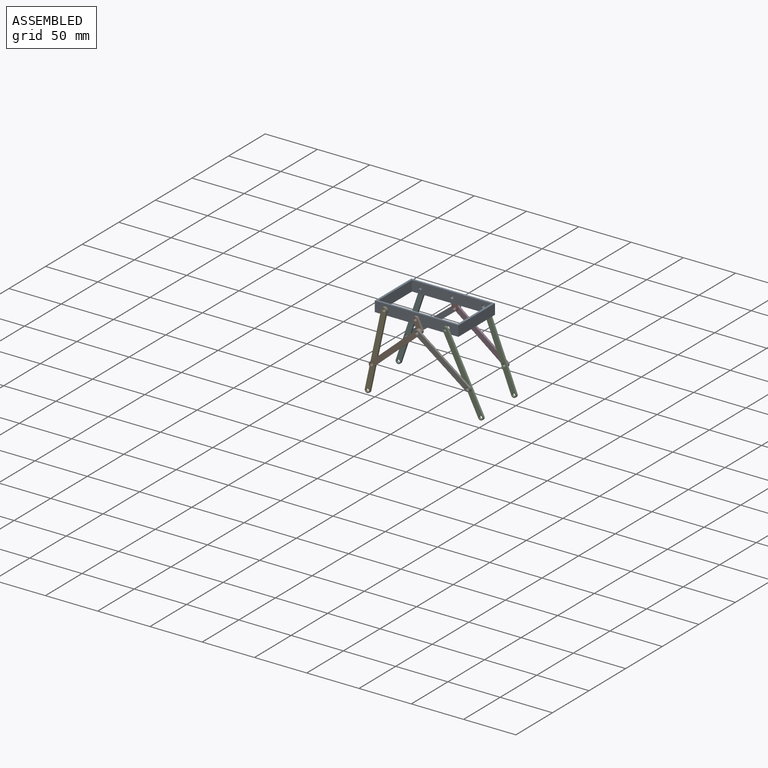
[diagram: assembled view]
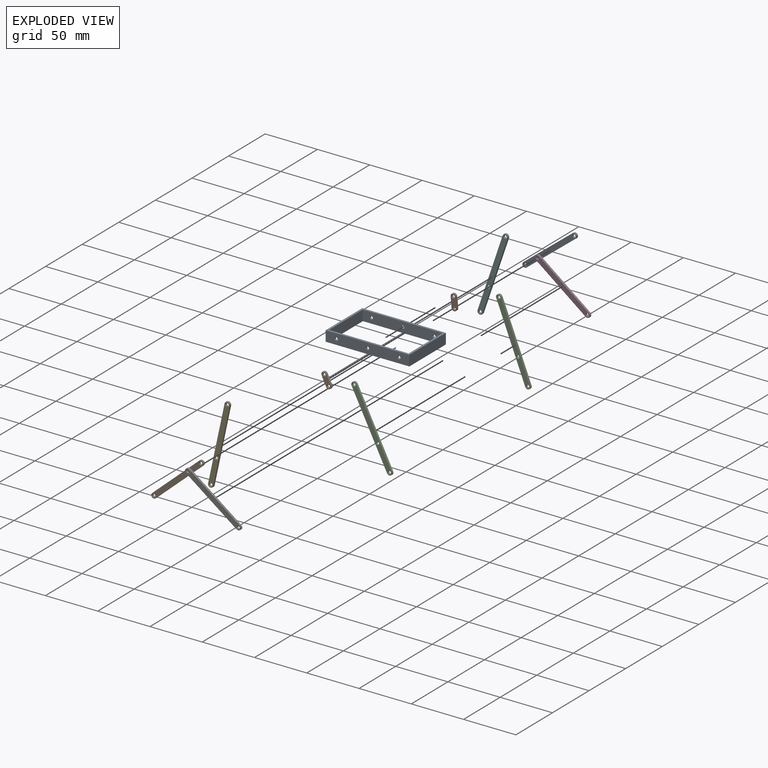
[diagram: exploded view]
GUIDED TOUR — MATED ASSEMBLY (Onshape document 7dee3af7dce9aced0ba5b8dd, AutoMate assembly 7dee3af7dce9aced0ba5b8dd_7815ff88cf026cb08cca351e_86197c67877f222337ba6f6c_default)

This assembly has 11 components, labeled P0..P10 below (a component is one placed occurrence of a part; the same part can appear more than once), held together by 16 mates. A mate is a constraint between two components; its type names the relative motion it leaves free:
  CYLINDRICAL — leaves both rotation about and translation along the listed axis free,
  PLANAR — leaves sliding in the plane through the listed point (normal = the listed direction) and rotation about that normal free,
  REVOLUTE — leaves rotation about the listed axis free (a hinge).
Axis/direction vectors are unit vectors and 'through' points are millimeter coordinates, both in the assembly's world frame.

MATES
  1. PLANAR "平面 7": P7 <-> P0, direction (0.000, -1.000, 0.000) through (40.44, 50.00, 0.02) mm
  2. REVOLUTE "轉動 4": P4 <-> P0, axis (0.000, 1.000, 0.000) through (10.00, 0.00, 5.00) mm
  3. PLANAR "平面 8": P9 <-> P0, direction (0.000, 1.000, 0.000) through (42.16, 0.00, 0.49) mm
  4. REVOLUTE "轉動 19": P5 <-> P8, axis (0.000, 1.000, 0.000) through (-6.03, 54.00, -42.36) mm
  5. REVOLUTE "轉動 17": P3 <-> P7, axis (0.000, -1.000, 0.000) through (40.89, 52.00, -4.96) mm
  6. REVOLUTE "轉動 1": P0 <-> P7, axis (0.000, 1.000, 0.000) through (40.00, 50.00, 5.00) mm
  7. CYLINDRICAL "圓柱 1": P6 <-> P1, axis (0.000, 1.000, 0.000) through (44.32, -4.00, -4.02) mm
  8. REVOLUTE "轉動 10": P1 <-> P4, axis (0.000, 1.000, 0.000) through (-0.52, -2.00, -43.88) mm
  9. REVOLUTE "轉動 9": P6 <-> P10, axis (0.000, 1.000, 0.000) through (92.65, -4.00, -39.57) mm
  10. REVOLUTE "轉動 20": P3 <-> P2, axis (0.000, -1.000, 0.000) through (88.52, 52.00, -41.44) mm
  11. REVOLUTE "轉動 5": P0 <-> P2, axis (0.000, 1.000, 0.000) through (70.00, 50.00, 5.00) mm
  12. REVOLUTE "轉動 7": P1 <-> P9, axis (0.000, 1.000, 0.000) through (44.32, -2.00, -4.02) mm
  13. REVOLUTE "轉動 3": P0 <-> P9, axis (0.000, -1.000, 0.000) through (40.00, 0.00, 5.00) mm
  14. REVOLUTE "轉動 6": P0 <-> P5, axis (0.000, 1.000, 0.000) through (10.00, 50.00, 5.00) mm
  15. CYLINDRICAL "圓柱 2": P8 <-> P3, axis (0.000, -1.000, 0.000) through (40.89, 54.00, -4.96) mm
  16. REVOLUTE "轉動 2": P0 <-> P10, axis (0.000, -1.000, 0.000) through (70.00, 0.00, 5.00) mm

ASSEMBLY ORDER
  1. P7 — the base component [order verified]
  2. P2 [order verified]
  3. P3 [order verified]
  4. P5 [order verified]
  5. P0 [order verified]
  6. P9 [order verified]
  7. P8 [order verified]
  8. P10 [order verified]
  9. P4 [order verified]
  10. P1 [order verified]
  11. P6 [order verified]
Order-tag legend:
  [order verified] — this step's position reverses a verified removal order: the component was checked to insert without passing through the ones already placed.

Of the 11 components, 11 carry the full construction recipe — the FeatureScript program that regenerates the part's solid from scratch; the rest are supplied as boundary geometry only.
Each toured component is shown spotlighted twice — in the assembled view, then in the exploded view, where a leader line traces a displaced component back to its assembled socket (saturated green if recipe-attached, orange if geometry-only; every other component desaturated gray) — followed by its recipe or geometry summary and the mates that hold it.
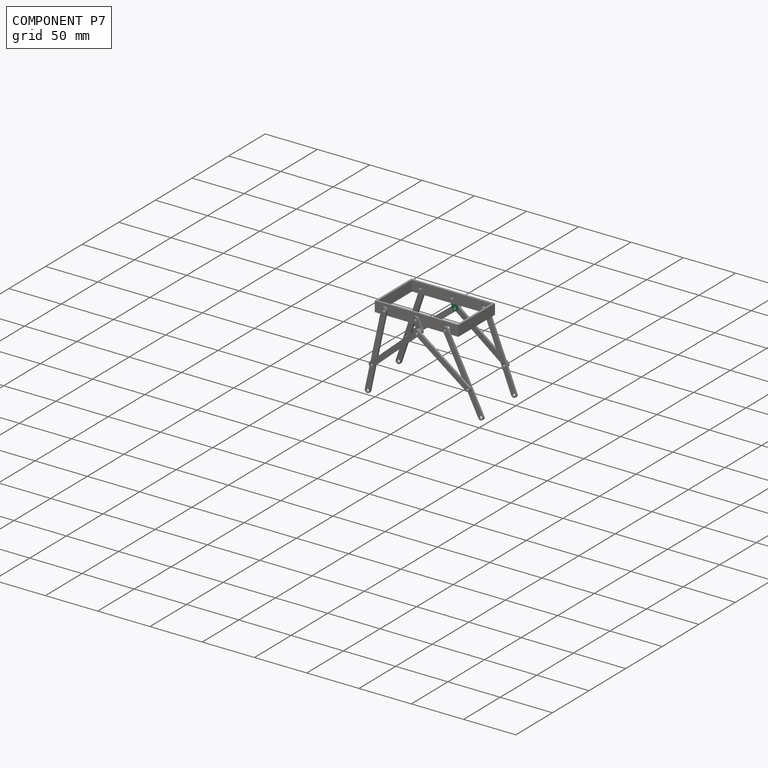
[diagram: component P7 — assembled]
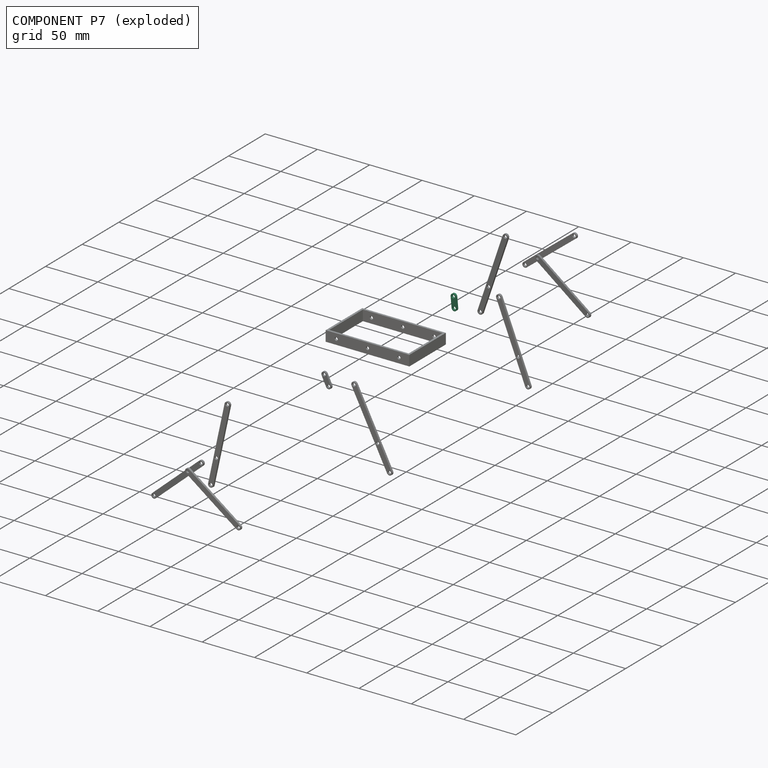
[diagram: component P7 — exploded]
COMPONENT P7 — recipe-attached (CADFS 00731948, mesh-verified: the recipe's output STEP matches this component's geometry to below the mesh-comparison resolution (tessellation chordal tolerance ~0.0239 mm)).
Held by: PLANAR mate "平面 7" to P0; REVOLUTE mate "轉動 17" to P3; REVOLUTE mate "轉動 1" to P0.
Construction recipe (FeatureScript — the CAD program that rebuilds this solid; sketch coordinates are in the units given by the * unit suffixes, e.g. mm):

FeatureScript 1511;
import(path : "onshape/std/geometry.fs", version : "1511.0");
import(path : "onshape/std/common.fs", version : "1511.0");
const mm = millimeter;
const VERTEX = EntityType.VERTEX;
const EDGE = EntityType.EDGE;
const FACE = EntityType.FACE;
const BODY = EntityType.BODY;
function v(x, y){return vector(x, y);}
function OD(order){return orderDisambiguation(order);}
function OSD(set){return originalSetDisambiguation(set);}
function TD(topology){return topologyDisambiguation(topology);}
function TDD(query){return trueDependencyDisambiguation(query);}
function sQuery(a, b, c) {return sketchEntityQuery(a, b, c);}

annotation { "Feature Type Name" : "Feature", "Feature Type Description" : "" }
export const myFeature = defineFeature(function(context is Context, id is Id, definition is map)
    precondition{}
    {
        {
            var Q0;
            Q0=qCreatedBy(makeId("Front.planeOp"),FACE);
            var sketch = newSketch(context, id + "F0", { "sketchPlane" : qUnion([Q0])});
            skCircle(sketch, "E0", {"center": v(0, 0) * mm, "radius": 1.5 * mm});
            skLineSegment(sketch, "E1", {"start": v(0, 0) * mm, "end": v(10, 0) * mm, "construction": true});
            skCircle(sketch, "E2", {"center": v(10, 0) * mm, "radius": 1.5 * mm});
            skArc(sketch, "E3", {"start": v(0, 2.5) * mm, "mid": v(-2.5, 0) * mm, "end": v(0, -2.5) * mm});
            skArc(sketch, "E4", {"start": v(10, -2.5) * mm, "mid": v(12.5, 0) * mm, "end": v(10, 2.5) * mm});
            skLineSegment(sketch, "E5", {"start": v(0, 2.5) * mm, "end": v(10, 2.5) * mm});
            skLineSegment(sketch, "E6.MirrorCS", {"start": v(0, -2.5) * mm, "end": v(10, -2.5) * mm});
            skSolve(sketch);
        }
        {
            var Q0;
            Q0 = qSketchRegion(id + "F0", true);
            extrude(context, id + "F1", {"entities" : qUnion([Q0]), "depth" : 2 * mm, "offsetDistance" : 25.4 * mm});
        }
    });
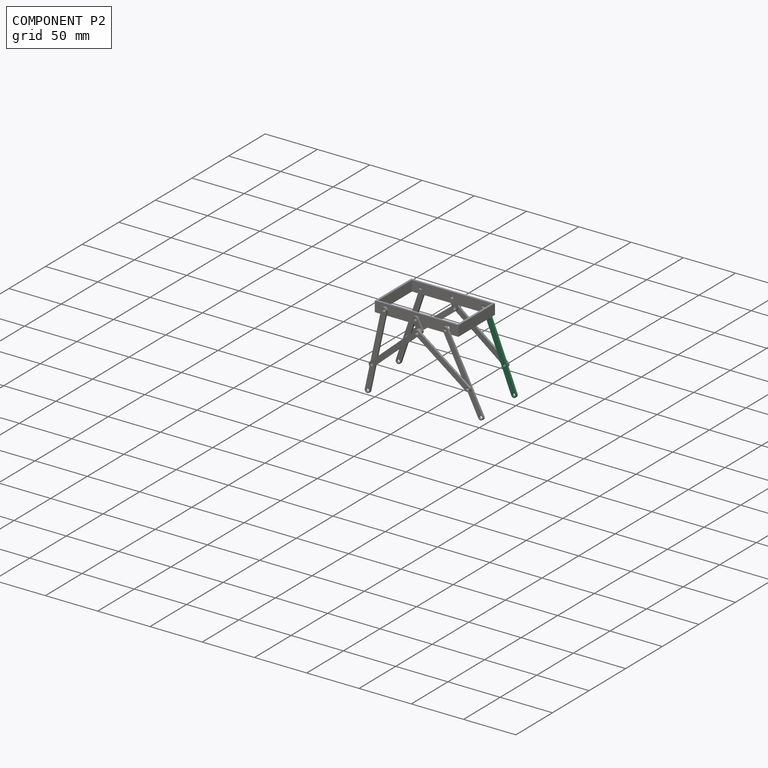
[diagram: component P2 — assembled]
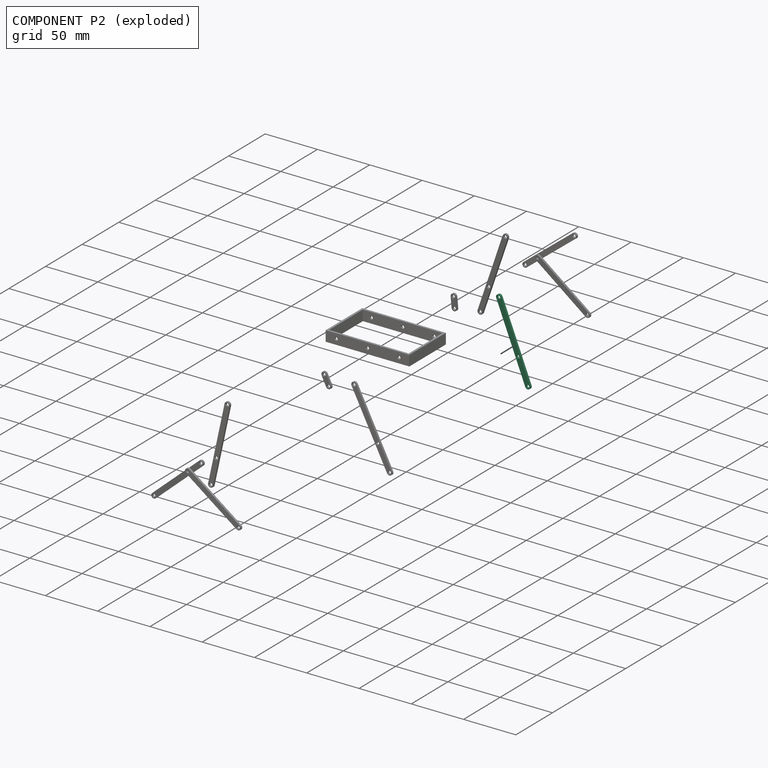
[diagram: component P2 — exploded]
COMPONENT P2 — recipe-attached (CADFS 00731947, mesh-verified: the recipe's output STEP matches this component's geometry to below the mesh-comparison resolution (tessellation chordal tolerance ~0.12 mm)).
Held by: REVOLUTE mate "轉動 20" to P3; REVOLUTE mate "轉動 5" to P0.
Construction recipe (FeatureScript — the CAD program that rebuilds this solid; sketch coordinates are in the units given by the * unit suffixes, e.g. mm):

FeatureScript 1511;
import(path : "onshape/std/geometry.fs", version : "1511.0");
import(path : "onshape/std/common.fs", version : "1511.0");
const mm = millimeter;
const VERTEX = EntityType.VERTEX;
const EDGE = EntityType.EDGE;
const FACE = EntityType.FACE;
const BODY = EntityType.BODY;
function v(x, y){return vector(x, y);}
function OD(order){return orderDisambiguation(order);}
function OSD(set){return originalSetDisambiguation(set);}
function TD(topology){return topologyDisambiguation(topology);}
function TDD(query){return trueDependencyDisambiguation(query);}
function sQuery(a, b, c) {return sketchEntityQuery(a, b, c);}

annotation { "Feature Type Name" : "Feature", "Feature Type Description" : "" }
export const myFeature = defineFeature(function(context is Context, id is Id, definition is map)
    precondition{}
    {
        {
            var Q0;
            Q0=qCreatedBy(makeId("Front.planeOp"),FACE);
            var sketch = newSketch(context, id + "F0", { "sketchPlane" : qUnion([Q0])});
            skCircle(sketch, "E0", {"center": v(0, 37.5) * mm, "radius": 1.5 * mm});
            skCircle(sketch, "E1", {"center": v(0, -37.5) * mm, "radius": 1.5 * mm});
            skArc(sketch, "E2", {"start": v(2.5, 37.5) * mm, "mid": v(0, 40) * mm, "end": v(-2.5, 37.5) * mm});
            skArc(sketch, "E3", {"start": v(-2.5, -37.5) * mm, "mid": v(0, -40) * mm, "end": v(2.5, -37.5) * mm});
            skLineSegment(sketch, "E4", {"start": v(2.5, 37.5) * mm, "end": v(2.5, -37.5) * mm});
            skLineSegment(sketch, "E5", {"start": v(-2.5, 37.5) * mm, "end": v(-2.5, -37.5) * mm});
            skCircle(sketch, "E6", {"center": v(0, 12.5) * mm, "radius": 1.5 * mm});
            skSolve(sketch);
        }
        {
            var Q0;
            Q0 = qSketchRegion(id + "F0", true);
            extrude(context, id + "F1", {"entities" : qUnion([Q0]), "depth" : 2 * mm, "offsetDistance" : 25 * mm});
        }
    });
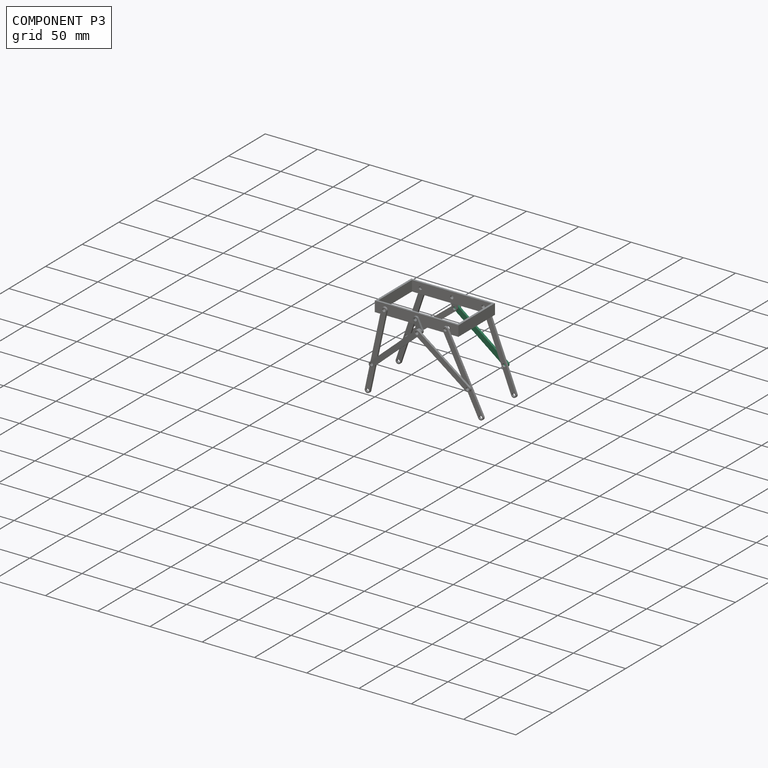
[diagram: component P3 — assembled]
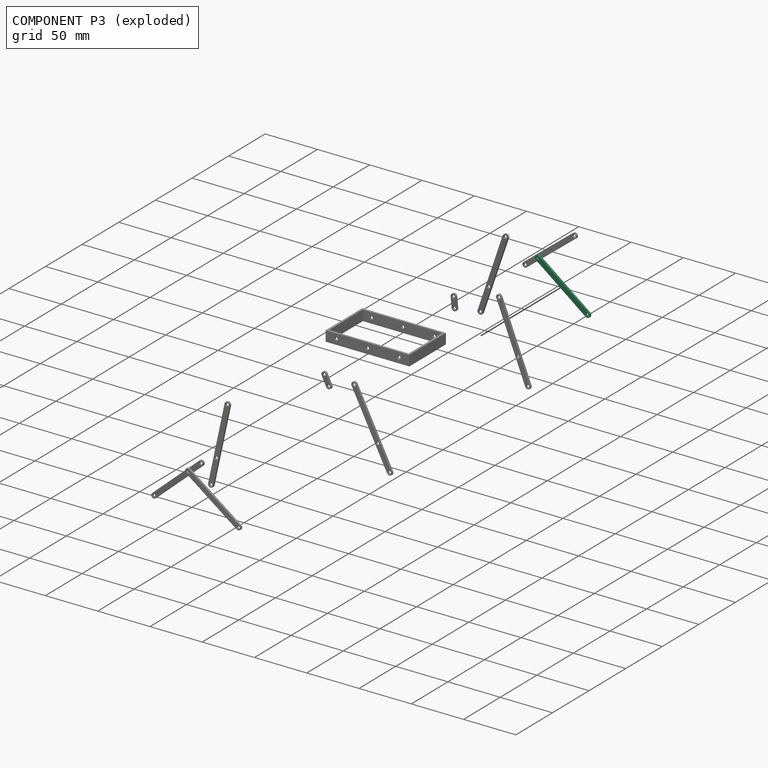
[diagram: component P3 — exploded]
COMPONENT P3 — same part as P1 (CADFS 00728989); its construction recipe is shown at P1.
Held by: REVOLUTE mate "轉動 17" to P7; REVOLUTE mate "轉動 20" to P2; CYLINDRICAL mate "圓柱 2" to P8.
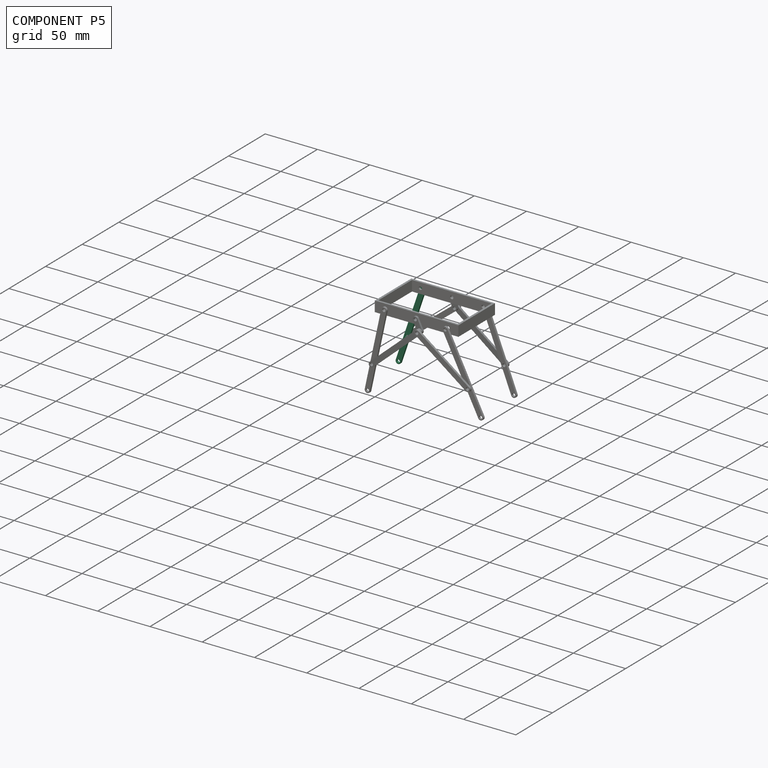
[diagram: component P5 — assembled]
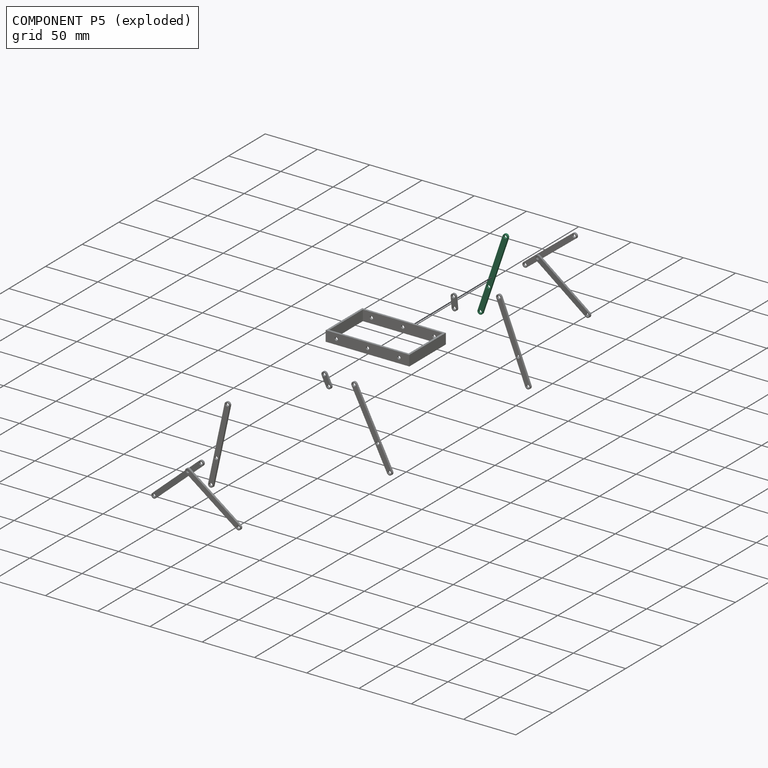
[diagram: component P5 — exploded]
COMPONENT P5 — same part as P2 (CADFS 00731947); its construction recipe is shown at P2.
Held by: REVOLUTE mate "轉動 19" to P8; REVOLUTE mate "轉動 6" to P0.
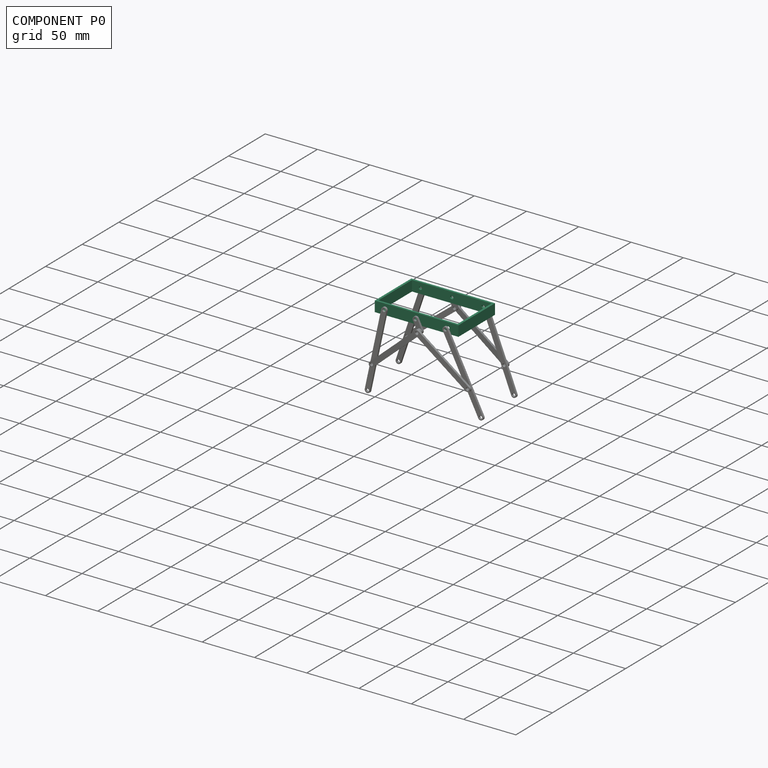
[diagram: component P0 — assembled]
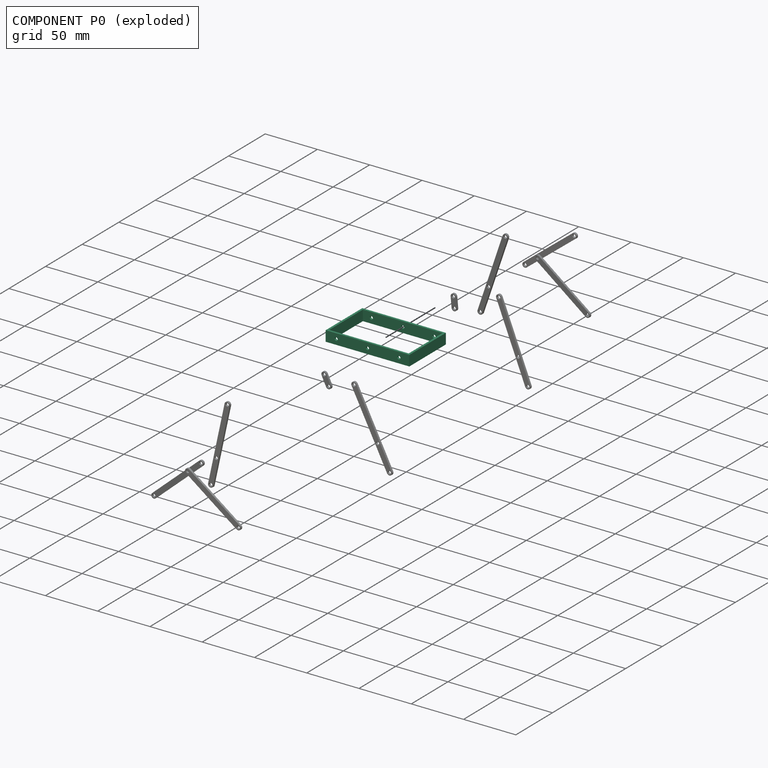
[diagram: component P0 — exploded]
COMPONENT P0 — recipe-attached (CADFS 00729754, mesh-verified: the recipe's output STEP matches this component's geometry to below the mesh-comparison resolution (tessellation chordal tolerance ~0.142 mm)).
Held by: PLANAR mate "平面 7" to P7; REVOLUTE mate "轉動 4" to P4; PLANAR mate "平面 8" to P9; REVOLUTE mate "轉動 1" to P7; REVOLUTE mate "轉動 5" to P2; REVOLUTE mate "轉動 3" to P9; REVOLUTE mate "轉動 6" to P5; REVOLUTE mate "轉動 2" to P10.
Construction recipe (FeatureScript — the CAD program that rebuilds this solid; sketch coordinates are in the units given by the * unit suffixes, e.g. mm):

FeatureScript 1511;
import(path : "onshape/std/geometry.fs", version : "1511.0");
import(path : "onshape/std/common.fs", version : "1511.0");
const mm = millimeter;
const VERTEX = EntityType.VERTEX;
const EDGE = EntityType.EDGE;
const FACE = EntityType.FACE;
const BODY = EntityType.BODY;
function v(x, y){return vector(x, y);}
function OD(order){return orderDisambiguation(order);}
function OSD(set){return originalSetDisambiguation(set);}
function TD(topology){return topologyDisambiguation(topology);}
function TDD(query){return trueDependencyDisambiguation(query);}
function sQuery(a, b, c) {return sketchEntityQuery(a, b, c);}

annotation { "Feature Type Name" : "Feature", "Feature Type Description" : "" }
export const myFeature = defineFeature(function(context is Context, id is Id, definition is map)
    precondition{}
    {
        {
            var Q0;
            Q0=qCreatedBy(makeId("Top.planeOp"),FACE);
            var sketch = newSketch(context, id + "F0", { "sketchPlane" : qUnion([Q0])});
            skLineSegment(sketch, "E0.bottom", {"start": v(40, -25) * mm, "end": v(-40, -25) * mm});
            skLineSegment(sketch, "E0.top", {"start": v(40, 25) * mm, "end": v(-40, 25) * mm});
            skLineSegment(sketch, "E0.left", {"start": v(40, -25) * mm, "end": v(40, 25) * mm});
            skLineSegment(sketch, "E0.right", {"start": v(-40, -25) * mm, "end": v(-40, 25) * mm});
            skPoint(sketch, "E0.middle", {"position": v(0, 0) * mm});
            skSolve(sketch);
        }
        {
            var Q0;
            Q0=makeQuery(id+"F0.imprint","IMPRINT",FACE,{"disambiguationData":[TD([[makeQuery(id+"F0.imprint","IMPRINT",EDGE,{"derivedFrom":sQuery(id+"F0.wireOp",EDGE,"E0.bottom")}),-1.0]])]});
            extrude(context, id + "F1", {"entities" : qUnion([Q0]), "depth" : 10 * mm, "offsetDistance" : 25 * mm});
        }
        {
            var Q0;
            Q0=makeQuery(id+"F1.opExtrude","CAP_FACE",FACE,{"disambiguationData":[OSD([sQuery(id+"F0.wireOp",EDGE,"E0.bottom"),sQuery(id+"F0.wireOp",EDGE,"E0.top"),sQuery(id+"F0.wireOp",EDGE,"E0.left"),sQuery(id+"F0.wireOp",EDGE,"E0.right")])],"isStart":false});
            var Q1;
            Q1=makeQuery(id+"F1.opExtrude","CAP_FACE",FACE,{"disambiguationData":[OSD([sQuery(id+"F0.wireOp",EDGE,"E0.bottom"),sQuery(id+"F0.wireOp",EDGE,"E0.top"),sQuery(id+"F0.wireOp",EDGE,"E0.left"),sQuery(id+"F0.wireOp",EDGE,"E0.right")])],"isStart":true});
            shell(context, id + "F2", {"entities" : qUnion([Q0, Q1]), "thickness" : 2 * mm});
        }
        {
            var Q0;
            Q0=qCreatedBy(makeId("Front.planeOp"),FACE);
            var sketch = newSketch(context, id + "F3", { "sketchPlane" : qUnion([Q0])});
            skCircle(sketch, "E1", {"center": v(0, 5) * mm, "radius": 1.5 * mm});
            skCircle(sketch, "E2", {"center": v(30, 5) * mm, "radius": 1.5 * mm});
            skCircle(sketch, "E3", {"center": v(-30, 5) * mm, "radius": 1.5 * mm});
            skSolve(sketch);
        }
        {
            var Q0;
            Q0 = qSketchRegion(id + "F3", true);
            extrude(context, id + "F4", {"entities" : qUnion([Q0]), "operationType" : NewBodyOperationType.REMOVE, "endBound" : BoundingType.SYMMETRIC, "oppositeDirection" : true, "depth" : 50 * mm, "offsetDistance" : 25 * mm});
        }
    });
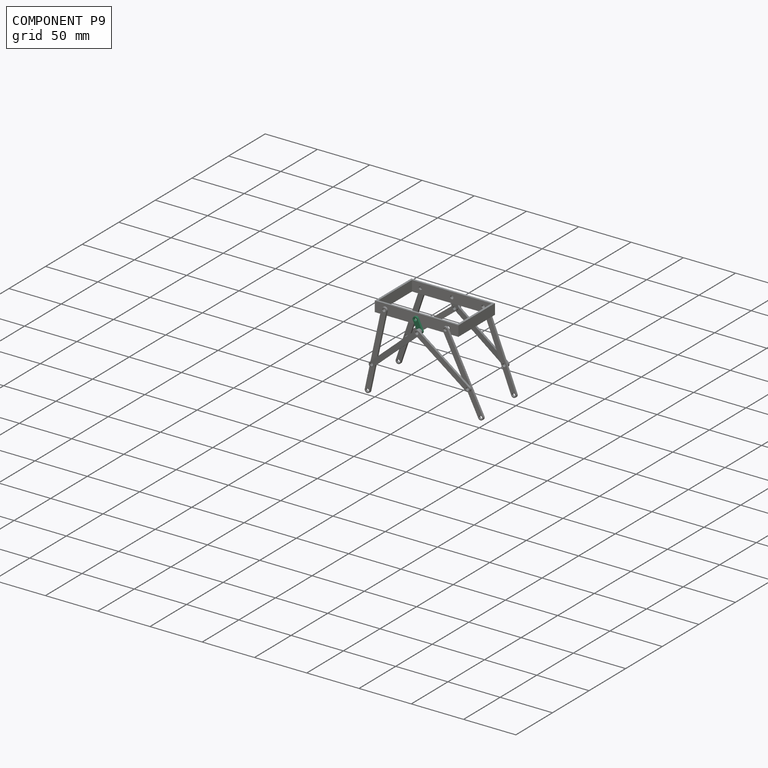
[diagram: component P9 — assembled]
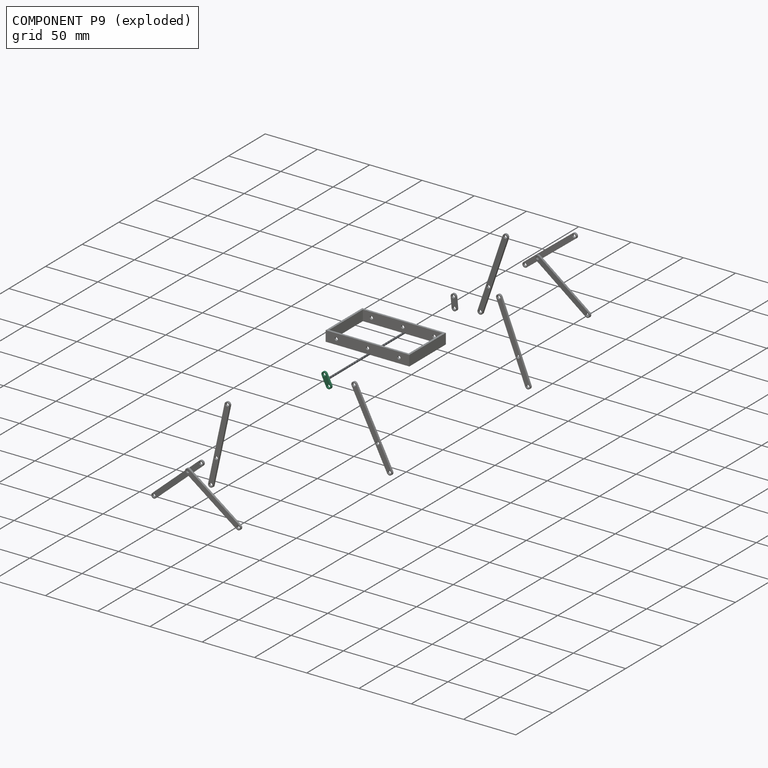
[diagram: component P9 — exploded]
COMPONENT P9 — same part as P7 (CADFS 00731948); its construction recipe is shown at P7.
Held by: PLANAR mate "平面 8" to P0; REVOLUTE mate "轉動 7" to P1; REVOLUTE mate "轉動 3" to P0.
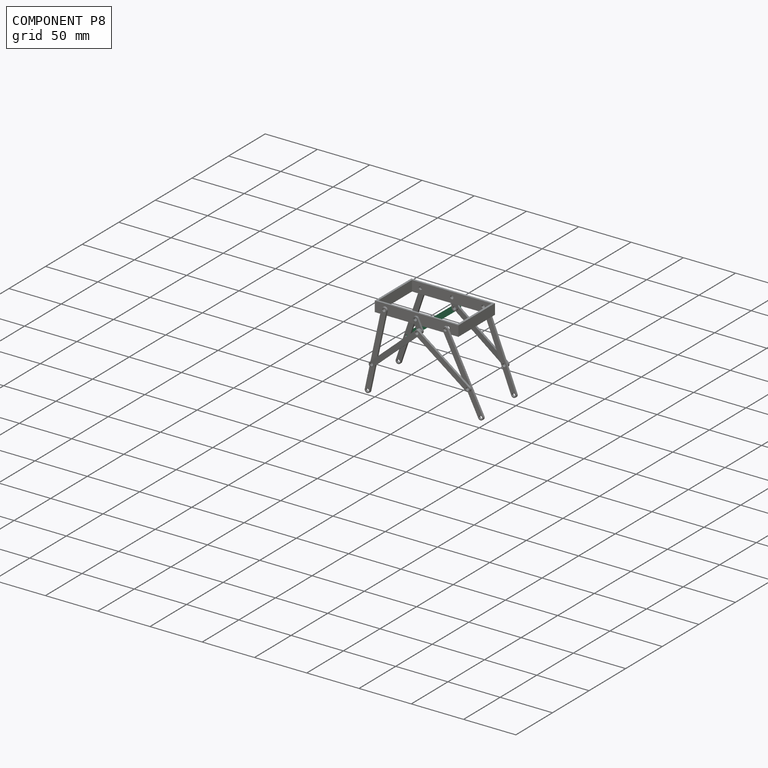
[diagram: component P8 — assembled]
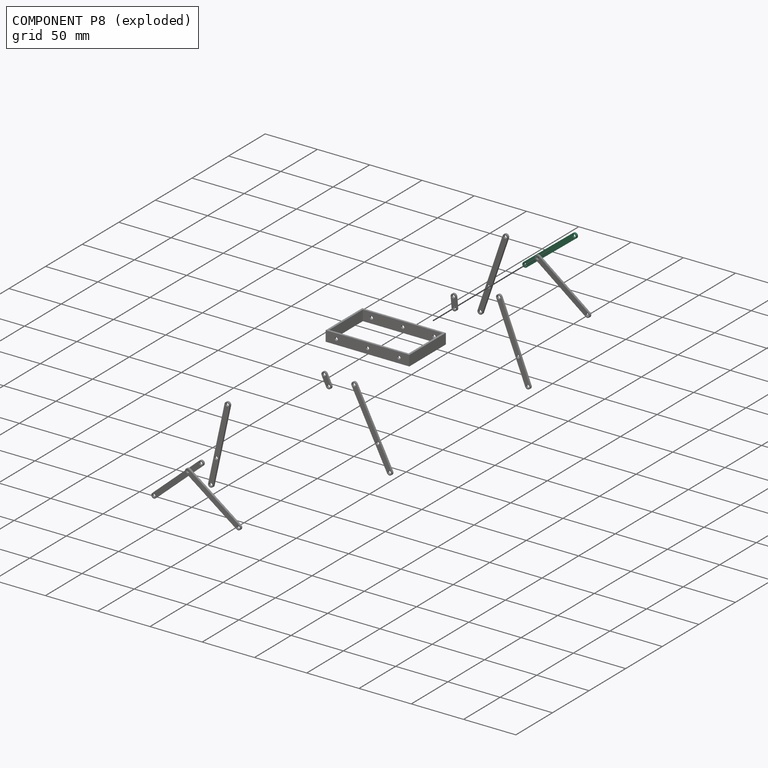
[diagram: component P8 — exploded]
COMPONENT P8 — same part as P1 (CADFS 00728989); its construction recipe is shown at P1.
Held by: REVOLUTE mate "轉動 19" to P5; CYLINDRICAL mate "圓柱 2" to P3.
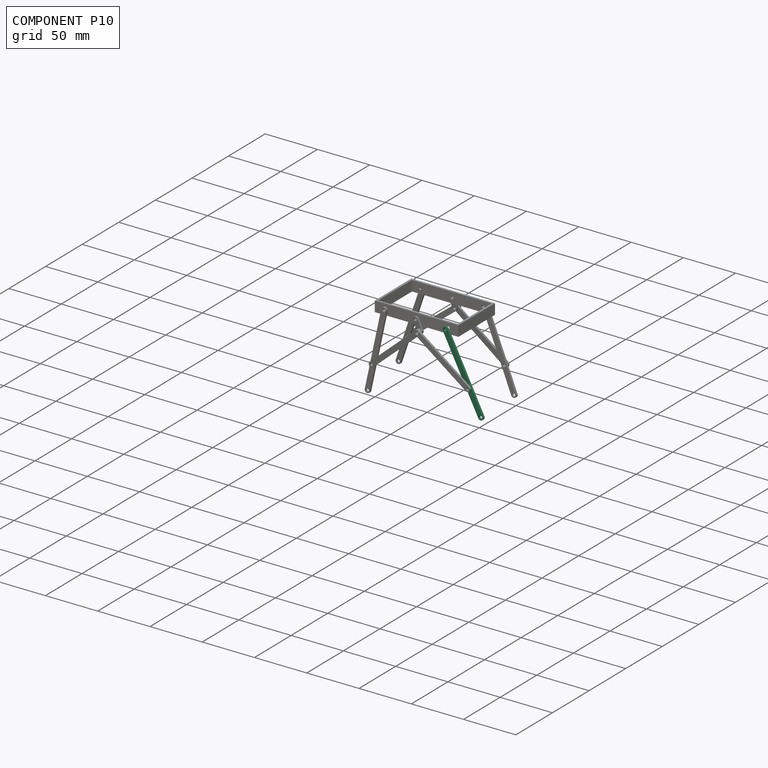
[diagram: component P10 — assembled]
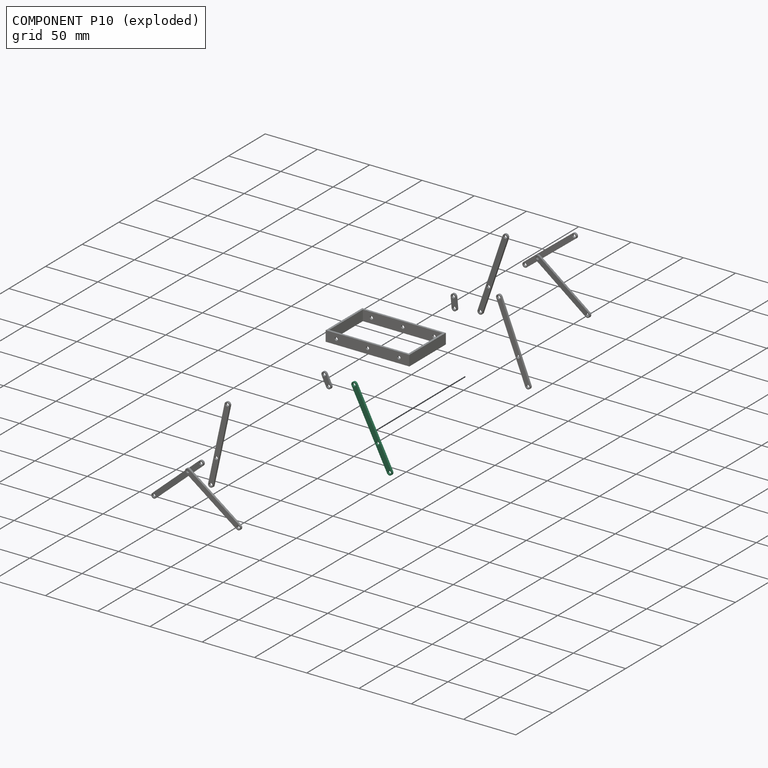
[diagram: component P10 — exploded]
COMPONENT P10 — same part as P2 (CADFS 00731947); its construction recipe is shown at P2.
Held by: REVOLUTE mate "轉動 9" to P6; REVOLUTE mate "轉動 2" to P0.
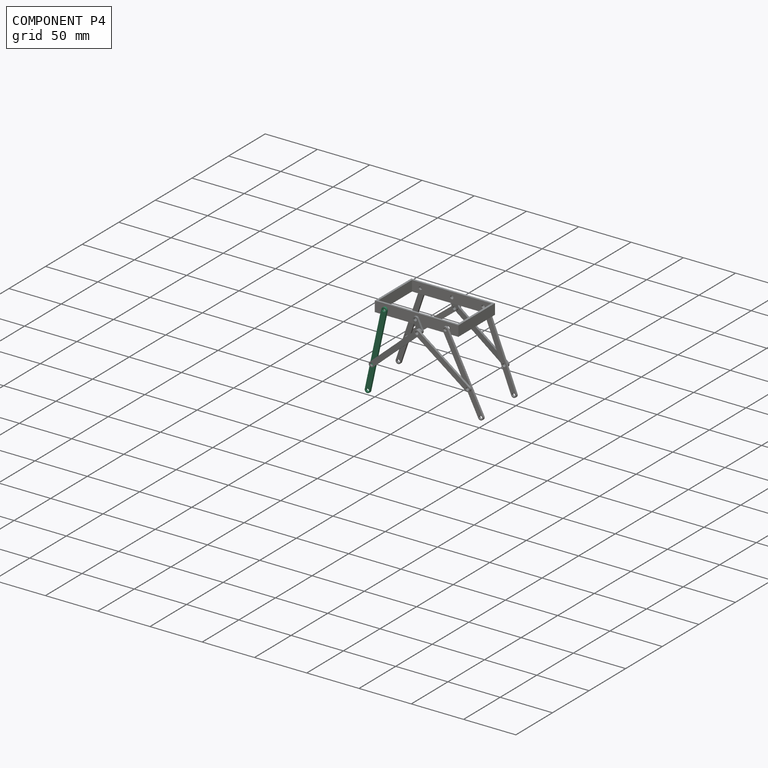
[diagram: component P4 — assembled]
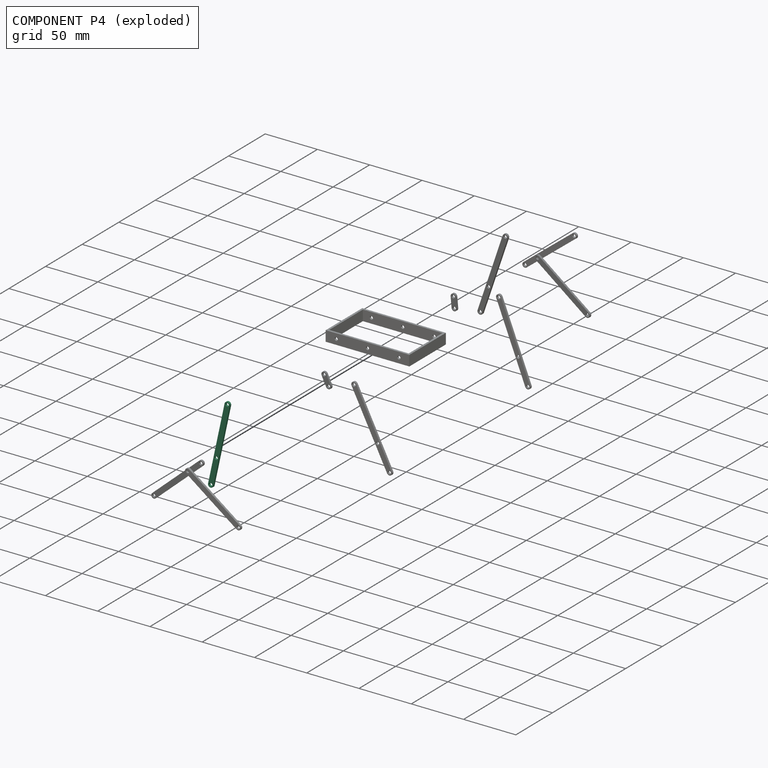
[diagram: component P4 — exploded]
COMPONENT P4 — same part as P2 (CADFS 00731947); its construction recipe is shown at P2.
Held by: REVOLUTE mate "轉動 4" to P0; REVOLUTE mate "轉動 10" to P1.
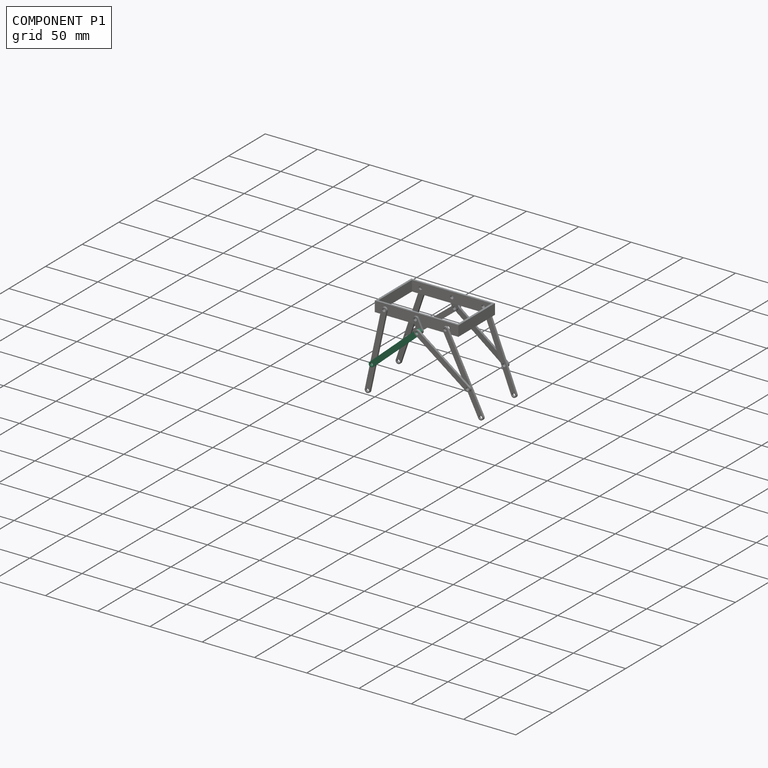
[diagram: component P1 — assembled]
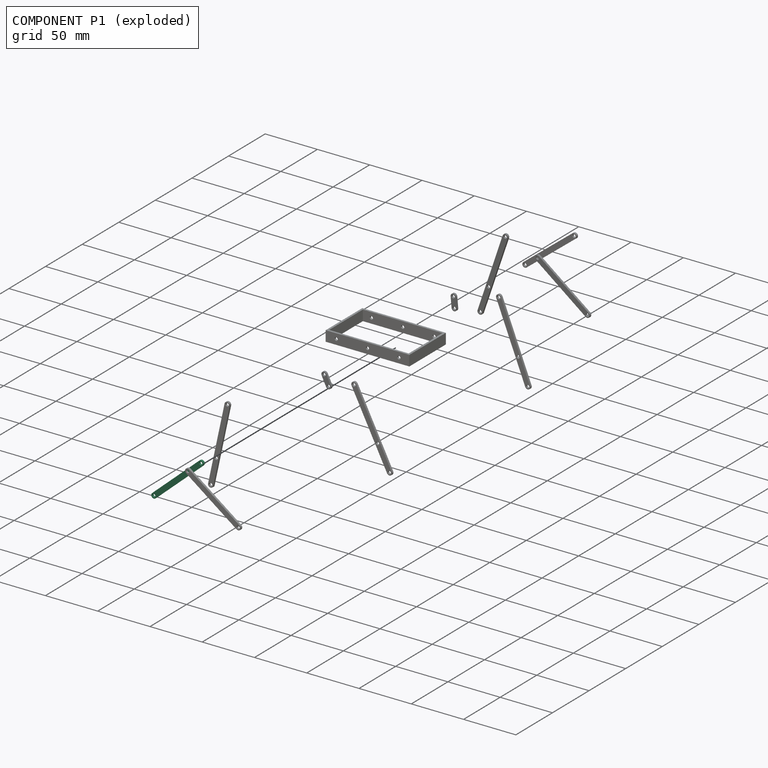
[diagram: component P1 — exploded]
COMPONENT P1 — recipe-attached (CADFS 00728989, mesh-verified: the recipe's output STEP matches this component's geometry to below the mesh-comparison resolution (tessellation chordal tolerance ~0.0978 mm)).
Held by: CYLINDRICAL mate "圓柱 1" to P6; REVOLUTE mate "轉動 10" to P4; REVOLUTE mate "轉動 7" to P9.
Construction recipe (FeatureScript — the CAD program that rebuilds this solid; sketch coordinates are in the units given by the * unit suffixes, e.g. mm):

FeatureScript 1511;
import(path : "onshape/std/geometry.fs", version : "1511.0");
import(path : "onshape/std/common.fs", version : "1511.0");
const mm = millimeter;
const VERTEX = EntityType.VERTEX;
const EDGE = EntityType.EDGE;
const FACE = EntityType.FACE;
const BODY = EntityType.BODY;
function v(x, y){return vector(x, y);}
function OD(order){return orderDisambiguation(order);}
function OSD(set){return originalSetDisambiguation(set);}
function TD(topology){return topologyDisambiguation(topology);}
function TDD(query){return trueDependencyDisambiguation(query);}
function sQuery(a, b, c) {return sketchEntityQuery(a, b, c);}

annotation { "Feature Type Name" : "Feature", "Feature Type Description" : "" }
export const myFeature = defineFeature(function(context is Context, id is Id, definition is map)
    precondition{}
    {
        {
            var Q0;
            Q0=qCreatedBy(makeId("Top.planeOp"),FACE);
            var sketch = newSketch(context, id + "F0", { "sketchPlane" : qUnion([Q0])});
            skArc(sketch, "E0", {"start": v(-30, 2.5) * mm, "mid": v(-32.5, 0) * mm, "end": v(-30, -2.5) * mm});
            skArc(sketch, "E1", {"start": v(30, -2.5) * mm, "mid": v(32.5, 0) * mm, "end": v(30, 2.5) * mm});
            skLineSegment(sketch, "E2", {"start": v(-30, 2.5) * mm, "end": v(30, 2.5) * mm});
            skLineSegment(sketch, "E3", {"start": v(-30, -2.5) * mm, "end": v(30, -2.5) * mm});
            skCircle(sketch, "E4", {"center": v(-30, 0) * mm, "radius": 1.5 * mm});
            skCircle(sketch, "E5", {"center": v(30, 0) * mm, "radius": 1.5 * mm});
            skSolve(sketch);
        }
        {
            var Q0;
            Q0=makeQuery(id+"F0.imprint","IMPRINT",FACE,{"disambiguationData":[TD([[makeQuery(id+"F0.imprint","IMPRINT",EDGE,{"derivedFrom":sQuery(id+"F0.wireOp",EDGE,"E0")}),1.0]])]});
            extrude(context, id + "F1", {"entities" : qUnion([Q0]), "endBound" : BoundingType.SYMMETRIC, "depth" : 2 * mm, "offsetDistance" : 25 * mm});
        }
    });
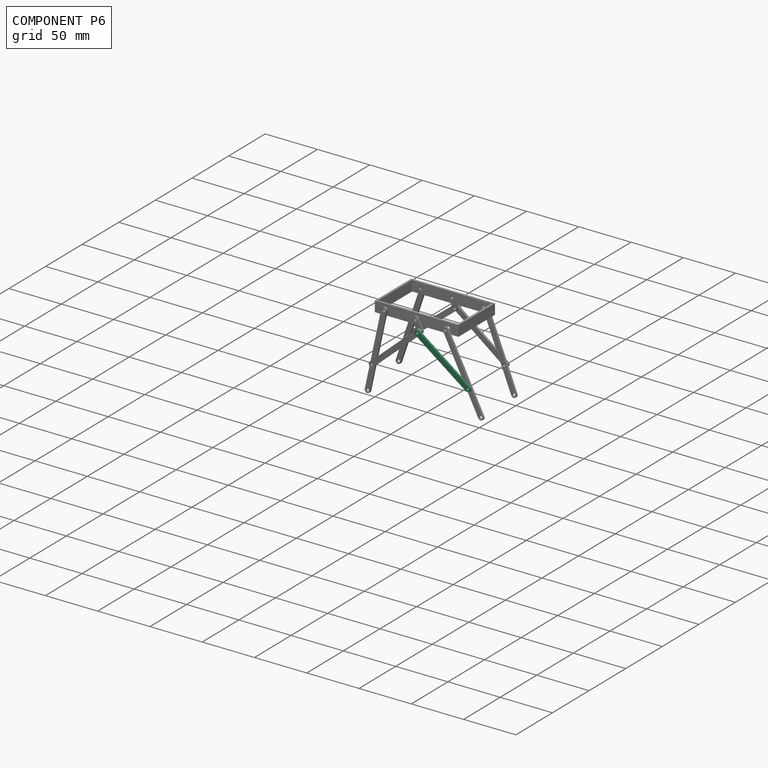
[diagram: component P6 — assembled]
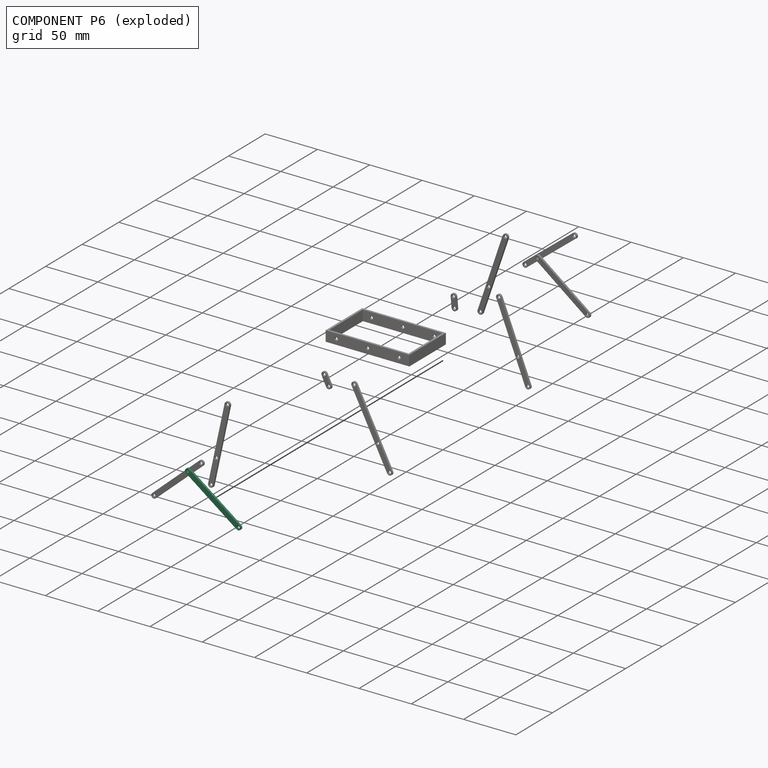
[diagram: component P6 — exploded]
COMPONENT P6 — same part as P1 (CADFS 00728989); its construction recipe is shown at P1.
Held by: CYLINDRICAL mate "圓柱 1" to P1; REVOLUTE mate "轉動 9" to P10.
PROVENANCE & LICENSES
Assembly (occurrences, transforms, mates, per-part STEP geometry): AutoMate dataset, Zenodo record 7776208, CC0.
Construction recipes: CADFS (HuggingFace VladPyatov/CADFS, CC-BY-4.0, layered over the ABC dataset), FeatureScript reconstruction programs keyed by ABC model id.
Join: ABC meta listings map ABC model id -> Onshape documentId; within a shared document, parts are matched by geometric signature (bounding-box dims + volume at 0.1% relative tolerance, exact B-rep face/solid counts).
Verification: 11 of this assembly's 11 components carry a recipe attachment, and every attachment is mesh-verified: the CADFS STEP and the AutoMate member STEP were compared as meshes in their shared local frame (symmetric sampled-point-to-mesh distance); worst across the 11 attachments: below the mesh-comparison resolution (tessellation chordal tolerance ~0.142 mm) on a 95 mm part.
Renders: orthographic iso camera (az 35 / el 25); the floor grid conveys scale (grid pitch printed in each image; no ruler). In the exploded view each component is displaced by its stored offset vector: the offsets alone carry the explosion direction (mate normal/axis signs are not orientation cues and do not encode it), and separation distances are assigned per mate-chain, not proportionally to assembly-order depth.
